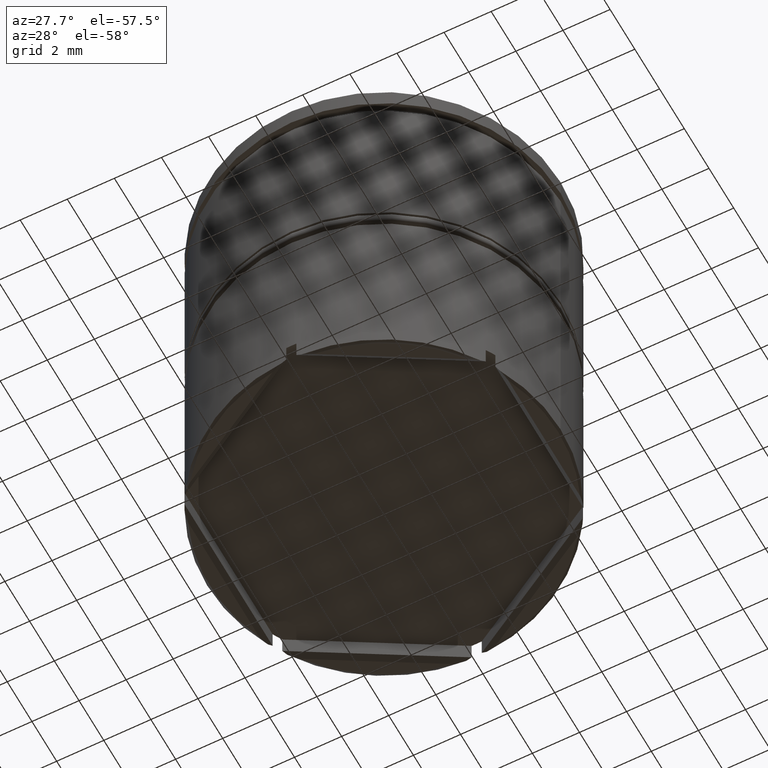
[diagram: clean part render]
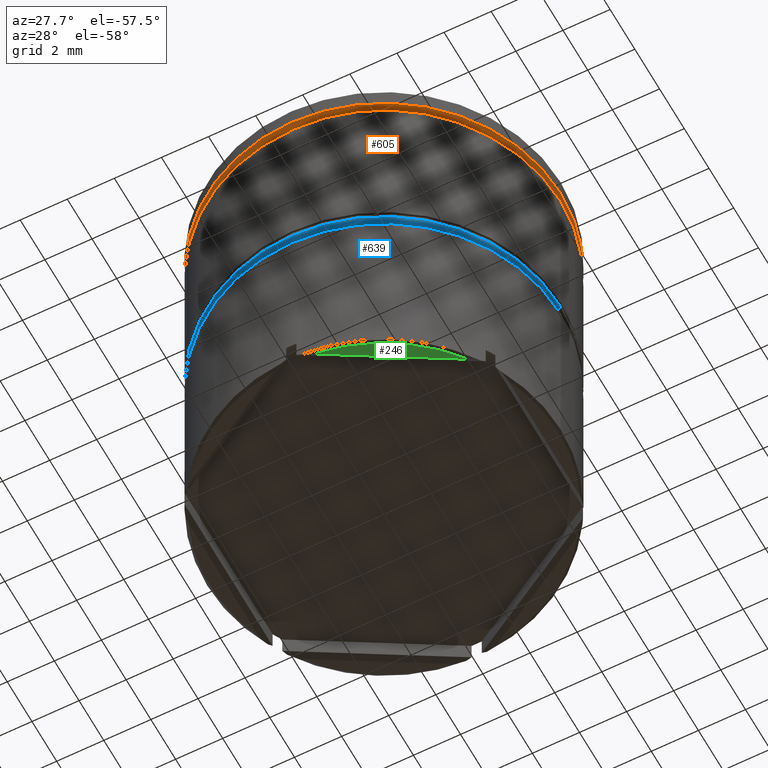
[diagram: same view with three faces highlighted in distinct colors, each labeled with its STEP entity id]
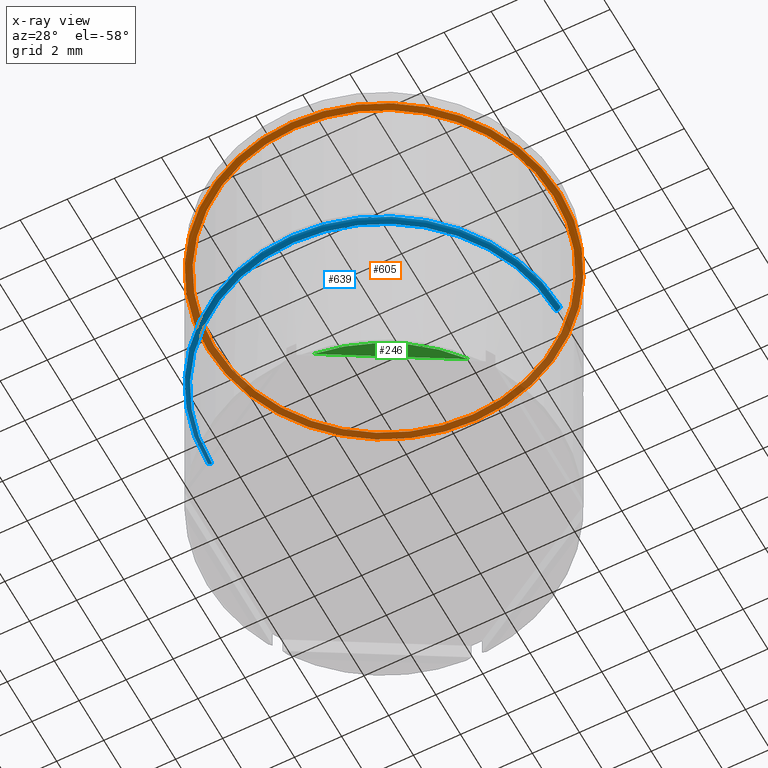
[diagram: x-ray of the same camera — body ghosted, the three highlighted faces saturated]
A machine part, auxiliary view with three faces highlighted in distinct colors.
The next image is the same camera in x-ray (body ghosted, the three faces saturated) — at least one of them is partly hidden behind the body in this view.
Their STEP definitions:

[orange] entity #605 — the highlighted planar face has unit normal (0, 0, -1).
#30 = DIRECTION ( 'NONE',  ( 0.000000000000000000, 0.000000000000000000, -1.000000000000000000 ) ) ;
#140 = CARTESIAN_POINT ( 'NONE',  ( 7.200000000000000178, 0.000000000000000000, -0.8749999999999998890 ) ) ;
#180 = EDGE_CURVE ( 'NONE', #301, #920, #1510, .T. ) ;
#193 = CIRCLE ( 'NONE', #748, 7.200000000000000178 ) ;
#223 = VERTEX_POINT ( 'NONE', #1388 ) ;
#226 = CARTESIAN_POINT ( 'NONE',  ( 0.000000000000000000, 0.000000000000000000, -0.8749999999999998890 ) ) ;
#235 = CARTESIAN_POINT ( 'NONE',  ( 0.000000000000000000, 0.000000000000000000, -0.8749999999999998890 ) ) ;
#237 = AXIS2_PLACEMENT_3D ( 'NONE', #256, #903, #264 ) ;
#256 = CARTESIAN_POINT ( 'NONE',  ( 0.000000000000000000, 0.000000000000000000, -0.8749999999999998890 ) ) ;
#264 = DIRECTION ( 'NONE',  ( 1.000000000000000000, 0.000000000000000000, 0.000000000000000000 ) ) ;
#278 = DIRECTION ( 'NONE',  ( -0.000000000000000000, -0.000000000000000000, 1.000000000000000000 ) ) ;
#301 = VERTEX_POINT ( 'NONE', #938 ) ;
#373 = ORIENTED_EDGE ( 'NONE', *, *, #1051, .T. ) ;
#390 = FACE_BOUND ( 'NONE', #1534, .T. ) ;
#403 = ORIENTED_EDGE ( 'NONE', *, *, #180, .F. ) ;
#512 = CARTESIAN_POINT ( 'NONE',  ( -7.500000000000000000, 9.184850993605147944E-16, -0.8749999999999998890 ) ) ;
#577 = VERTEX_POINT ( 'NONE', #140 ) ;
#605 = ADVANCED_FACE ( 'NONE', ( #390, #1034 ), #1168, .T. ) ;
#648 = AXIS2_PLACEMENT_3D ( 'NONE', #1157, #30, #760 ) ;
#680 = EDGE_CURVE ( 'NONE', #920, #301, #1313, .T. ) ;
#739 = DIRECTION ( 'NONE',  ( -0.000000000000000000, -0.000000000000000000, 1.000000000000000000 ) ) ;
#748 = AXIS2_PLACEMENT_3D ( 'NONE', #235, #739, #1253 ) ;
#760 = DIRECTION ( 'NONE',  ( -1.000000000000000000, 0.000000000000000000, -0.000000000000000000 ) ) ;
#903 = DIRECTION ( 'NONE',  ( -0.000000000000000000, -0.000000000000000000, 1.000000000000000000 ) ) ;
#920 = VERTEX_POINT ( 'NONE', #512 ) ;
#925 = AXIS2_PLACEMENT_3D ( 'NONE', #226, #1595, #972 ) ;
#938 = CARTESIAN_POINT ( 'NONE',  ( 7.500000000000000000, 0.000000000000000000, -0.8749999999999998890 ) ) ;
#972 = DIRECTION ( 'NONE',  ( 1.000000000000000000, 0.000000000000000000, 0.000000000000000000 ) ) ;
#1034 = FACE_OUTER_BOUND ( 'NONE', #1266, .T. ) ;
#1051 = EDGE_CURVE ( 'NONE', #223, #577, #193, .T. ) ;
#1076 = CARTESIAN_POINT ( 'NONE',  ( 0.000000000000000000, 0.000000000000000000, -0.8749999999999998890 ) ) ;
#1157 = CARTESIAN_POINT ( 'NONE',  ( 0.000000000000000000, 7.500000000000000000, -0.8749999999999998890 ) ) ;
#1168 = PLANE ( 'NONE',  #648 ) ;
#1182 = AXIS2_PLACEMENT_3D ( 'NONE', #1076, #278, #1307 ) ;
#1215 = CIRCLE ( 'NONE', #925, 7.200000000000000178 ) ;
#1253 = DIRECTION ( 'NONE',  ( 1.000000000000000000, 0.000000000000000000, 0.000000000000000000 ) ) ;
#1266 = EDGE_LOOP ( 'NONE', ( #403, #1423 ) ) ;
#1299 = ORIENTED_EDGE ( 'NONE', *, *, #1625, .T. ) ;
#1307 = DIRECTION ( 'NONE',  ( 1.000000000000000000, 0.000000000000000000, 0.000000000000000000 ) ) ;
#1313 = CIRCLE ( 'NONE', #1182, 7.500000000000000000 ) ;
#1388 = CARTESIAN_POINT ( 'NONE',  ( -7.200000000000000178, 8.817456953860942303E-16, -0.8749999999999998890 ) ) ;
#1423 = ORIENTED_EDGE ( 'NONE', *, *, #680, .F. ) ;
#1510 = CIRCLE ( 'NONE', #237, 7.500000000000000000 ) ;
#1534 = EDGE_LOOP ( 'NONE', ( #1299, #373 ) ) ;
#1595 = DIRECTION ( 'NONE',  ( -0.000000000000000000, -0.000000000000000000, 1.000000000000000000 ) ) ;
#1625 = EDGE_CURVE ( 'NONE', #577, #223, #1215, .T. ) ;

[blue] entity #639 — the highlighted toroidal blend (fillet) surface has major radius 7.3 mm and minor (blend) radius 0.2 mm.
#125 = CARTESIAN_POINT ( 'NONE',  ( 7.299999999999999822, 0.000000000000000000, -8.800000000000002487 ) ) ;
#156 = FACE_OUTER_BOUND ( 'NONE', #348, .T. ) ;
#172 = DIRECTION ( 'NONE',  ( 0.000000000000000000, 0.000000000000000000, 1.000000000000000000 ) ) ;
#233 = EDGE_CURVE ( 'NONE', #1195, #1169, #374, .T. ) ;
#239 = VERTEX_POINT ( 'NONE', #1564 ) ;
#253 = ORIENTED_EDGE ( 'NONE', *, *, #1119, .F. ) ;
#266 = VERTEX_POINT ( 'NONE', #1310 ) ;
#348 = EDGE_LOOP ( 'NONE', ( #1524, #1326, #360, #253 ) ) ;
#360 = ORIENTED_EDGE ( 'NONE', *, *, #233, .T. ) ;
#374 = CIRCLE ( 'NONE', #800, 0.2000000000000005107 ) ;
#381 = AXIS2_PLACEMENT_3D ( 'NONE', #1084, #451, #959 ) ;
#451 = DIRECTION ( 'NONE',  ( 1.224646799147353207E-16, 1.000000000000000000, -0.000000000000000000 ) ) ;
#489 = AXIS2_PLACEMENT_3D ( 'NONE', #1164, #172, #1547 ) ;
#552 = DIRECTION ( 'NONE',  ( 0.000000000000000000, 0.000000000000000000, 1.000000000000000000 ) ) ;
#636 = DIRECTION ( 'NONE',  ( 0.000000000000000000, -1.000000000000000000, 0.000000000000000000 ) ) ;
#639 = ADVANCED_FACE ( 'NONE', ( #156 ), #1020, .T. ) ;
#800 = AXIS2_PLACEMENT_3D ( 'NONE', #125, #636, #1140 ) ;
#826 = CARTESIAN_POINT ( 'NONE',  ( 7.299999999999999822, 0.000000000000000000, -9.000000000000001776 ) ) ;
#879 = DIRECTION ( 'NONE',  ( 1.000000000000000000, 0.000000000000000000, 0.000000000000000000 ) ) ;
#888 = DIRECTION ( 'NONE',  ( -0.000000000000000000, -0.000000000000000000, -1.000000000000000000 ) ) ;
#899 = EDGE_CURVE ( 'NONE', #266, #239, #1621, .T. ) ;
#959 = DIRECTION ( 'NONE',  ( -1.000000000000000000, 1.224646799147358384E-16, 0.000000000000000000 ) ) ;
#1020 = TOROIDAL_SURFACE ( 'NONE', #1541, 7.299999999999999822, 0.2000000000000000111 ) ;
#1039 = CARTESIAN_POINT ( 'NONE',  ( 7.500000000000000000, 0.000000000000000000, -8.800000000000002487 ) ) ;
#1053 = DIRECTION ( 'NONE',  ( 1.000000000000000000, 0.000000000000000000, 0.000000000000000000 ) ) ;
#1084 = CARTESIAN_POINT ( 'NONE',  ( -7.299999999999999822, 8.939921633775678831E-16, -8.800000000000002487 ) ) ;
#1119 = EDGE_CURVE ( 'NONE', #239, #1169, #1125, .T. ) ;
#1125 = CIRCLE ( 'NONE', #489, 7.500000000000000000 ) ;
#1140 = DIRECTION ( 'NONE',  ( 0.000000000000000000, 0.000000000000000000, -1.000000000000000000 ) ) ;
#1164 = CARTESIAN_POINT ( 'NONE',  ( 0.000000000000000000, 0.000000000000000000, -8.800000000000002487 ) ) ;
#1169 = VERTEX_POINT ( 'NONE', #1039 ) ;
#1195 = VERTEX_POINT ( 'NONE', #826 ) ;
#1262 = EDGE_CURVE ( 'NONE', #1195, #266, #1283, .T. ) ;
#1283 = CIRCLE ( 'NONE', #1466, 7.299999999999999822 ) ;
#1310 = CARTESIAN_POINT ( 'NONE',  ( -7.299999999999999822, 9.062386313690412402E-16, -9.000000000000001776 ) ) ;
#1326 = ORIENTED_EDGE ( 'NONE', *, *, #1262, .F. ) ;
#1374 = CARTESIAN_POINT ( 'NONE',  ( 0.000000000000000000, 0.000000000000000000, -9.000000000000001776 ) ) ;
#1447 = CARTESIAN_POINT ( 'NONE',  ( 0.000000000000000000, 0.000000000000000000, -8.800000000000002487 ) ) ;
#1466 = AXIS2_PLACEMENT_3D ( 'NONE', #1374, #888, #879 ) ;
#1524 = ORIENTED_EDGE ( 'NONE', *, *, #899, .F. ) ;
#1541 = AXIS2_PLACEMENT_3D ( 'NONE', #1447, #552, #1053 ) ;
#1547 = DIRECTION ( 'NONE',  ( 1.000000000000000000, 0.000000000000000000, 0.000000000000000000 ) ) ;
#1564 = CARTESIAN_POINT ( 'NONE',  ( -7.500000000000000000, 9.184850993605145972E-16, -8.800000000000002487 ) ) ;
#1621 = CIRCLE ( 'NONE', #381, 0.1999999999999996503 ) ;

[green] entity #246 — the highlighted planar face has unit normal (0, 0, -1).
#34 = EDGE_CURVE ( 'NONE', #1023, #60, #1328, .T. ) ;
#60 = VERTEX_POINT ( 'NONE', #328 ) ;
#72 = DIRECTION ( 'NONE',  ( 0.8660254037844387076, 0.4999999999999998335, 0.000000000000000000 ) ) ;
#135 = ORIENTED_EDGE ( 'NONE', *, *, #1529, .T. ) ;
#171 = CARTESIAN_POINT ( 'NONE',  ( 6.298275349237890453, -4.215652692666034262, -17.50000000000000000 ) ) ;
#246 = ADVANCED_FACE ( 'NONE', ( #545 ), #579, .T. ) ;
#279 = AXIS2_PLACEMENT_3D ( 'NONE', #549, #794, #515 ) ;
#328 = CARTESIAN_POINT ( 'NONE',  ( 5.927844931952916951, -4.429520793801538403, -17.50000000000000000 ) ) ;
#363 = CIRCLE ( 'NONE', #279, 7.400000000000006573 ) ;
#453 = CARTESIAN_POINT ( 'NONE',  ( 0.000000000000000000, 7.500000000000000000, -17.50000000000000000 ) ) ;
#498 = CARTESIAN_POINT ( 'NONE',  ( 0.8721550680470830930, -7.348424697666832373, -17.50000000000000000 ) ) ;
#515 = DIRECTION ( 'NONE',  ( -1.000000000000000000, 0.000000000000000000, 0.000000000000000000 ) ) ;
#545 = FACE_OUTER_BOUND ( 'NONE', #988, .T. ) ;
#549 = CARTESIAN_POINT ( 'NONE',  ( 0.000000000000000000, 0.000000000000000000, -17.50000000000000000 ) ) ;
#579 = PLANE ( 'NONE',  #1013 ) ;
#592 = VECTOR ( 'NONE', #72, 1000.000000000000000 ) ;
#687 = DIRECTION ( 'NONE',  ( -1.000000000000000000, 0.000000000000000000, -0.000000000000000000 ) ) ;
#794 = DIRECTION ( 'NONE',  ( 0.000000000000000000, 0.000000000000000000, -1.000000000000000000 ) ) ;
#988 = EDGE_LOOP ( 'NONE', ( #135, #1035 ) ) ;
#1013 = AXIS2_PLACEMENT_3D ( 'NONE', #453, #1443, #687 ) ;
#1023 = VERTEX_POINT ( 'NONE', #498 ) ;
#1035 = ORIENTED_EDGE ( 'NONE', *, *, #34, .T. ) ;
#1328 = LINE ( 'NONE', #171, #592 ) ;
#1443 = DIRECTION ( 'NONE',  ( 0.000000000000000000, 0.000000000000000000, -1.000000000000000000 ) ) ;
#1529 = EDGE_CURVE ( 'NONE', #60, #1023, #363, .T. ) ;